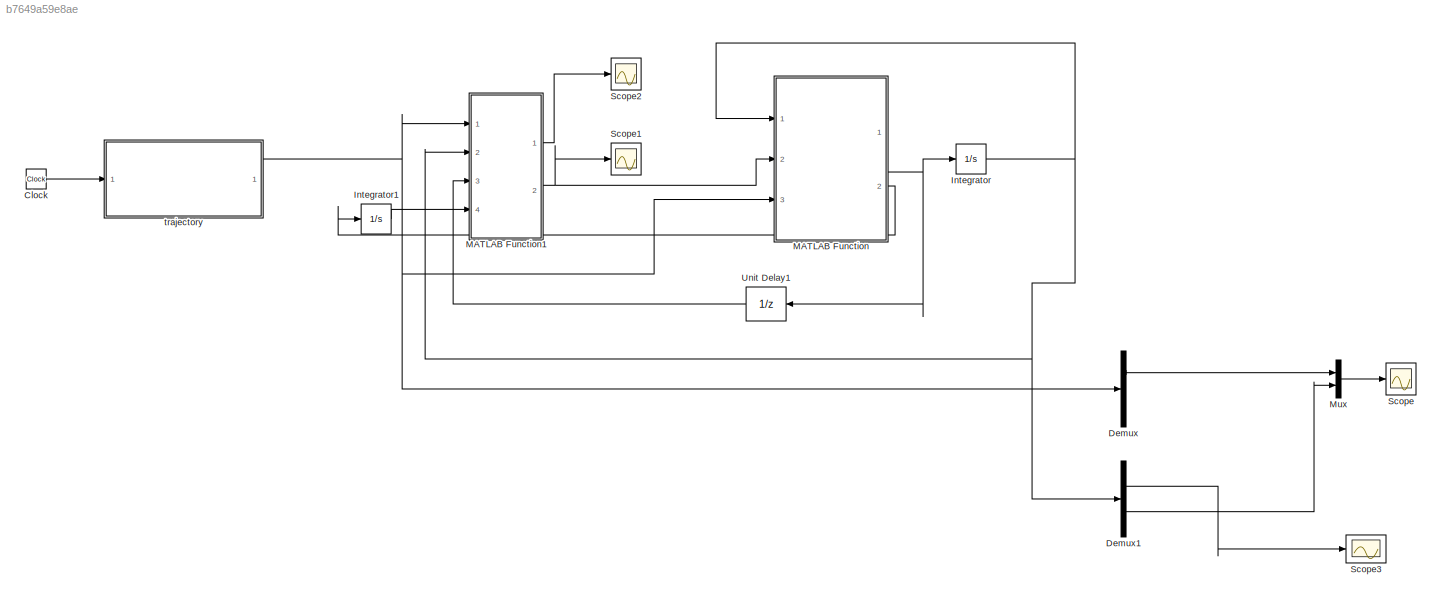
MODEL slx_b7649a59e8ae
KIND model
CONFIG AbsTol = auto
CONFIG EnableMultiTasking = off
CONFIG FixedStep = 10e-5
CONFIG MaxStep = auto
CONFIG MinStep = auto
CONFIG RelTol = auto
CONFIG SampleTimeConstraint = Unconstrained
CONFIG Solver = FixedStepAuto
CONFIG SolverName = FixedStepAuto
CONFIG StartTime = 0.0
CONFIG StopTime = 100
BLOCK [Clock] Clock
BLOCK [Demux] Demux
  DisplayOption = bar
  Outputs = 3
  Ports = [1, 3]
BLOCK [Demux] Demux1
  DisplayOption = bar
  Outputs = 2
  Ports = [1, 2]
BLOCK [Integrator] Integrator
  InitialCondition = [1;-1]
  Ports = [1, 1]
BLOCK [Integrator] Integrator1
  Ports = [1, 1]
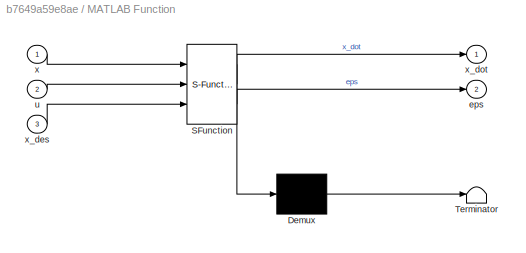
BLOCK [SubSystem] MATLAB Function
  ErrorFcn = Stateflow.Translate.translate
  PermitHierarchicalResolution = ExplicitOnly
  Ports = [3, 2]
  RequestExecContextInheritance = off
  SFBlockType = MATLAB Function
  TreatAsAtomicUnit = on
  Variant = off
BLOCK [Demux] MATLAB Function/ Demux 
  Outputs = 1
  Ports = [1, 1]
BLOCK [S-Function] MATLAB Function/ SFunction 
  EnableBusSupport = on
  FunctionName = sf_sfun
  PortCounts = [3 3]
  Ports = [3, 3]
  SFcnIsStateOwnerBlock = off
  SFunctionDeploymentMode = off
  Tag = Stateflow S-Function ver3_linear_no_r 2
BLOCK [Terminator] MATLAB Function/ Terminator 
BLOCK [Outport] MATLAB Function/eps
  IconDisplay = Port number
  Port = 2
BLOCK [Inport] MATLAB Function/u
  IconDisplay = Port number
  Port = 2
BLOCK [Inport] MATLAB Function/x
  IconDisplay = Port number
BLOCK [Inport] MATLAB Function/x_des
  IconDisplay = Port number
  Port = 3
BLOCK [Outport] MATLAB Function/x_dot
  IconDisplay = Port number
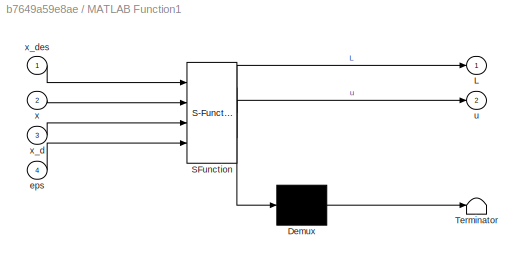
BLOCK [SubSystem] MATLAB Function1
  ErrorFcn = Stateflow.Translate.translate
  PermitHierarchicalResolution = ExplicitOnly
  Ports = [4, 2]
  RequestExecContextInheritance = off
  SFBlockType = MATLAB Function
  TreatAsAtomicUnit = on
  Variant = off
BLOCK [Demux] MATLAB Function1/ Demux 
  Outputs = 1
  Ports = [1, 1]
BLOCK [S-Function] MATLAB Function1/ SFunction 
  EnableBusSupport = on
  FunctionName = sf_sfun
  PortCounts = [4 3]
  Ports = [4, 3]
  SFcnIsStateOwnerBlock = off
  SFunctionDeploymentMode = off
  Tag = Stateflow S-Function ver3_linear_no_r 1
BLOCK [Terminator] MATLAB Function1/ Terminator 
BLOCK [Outport] MATLAB Function1/L
  IconDisplay = Port number
BLOCK [Inport] MATLAB Function1/eps
  IconDisplay = Port number
  Port = 4
BLOCK [Outport] MATLAB Function1/u
  IconDisplay = Port number
  Port = 2
BLOCK [Inport] MATLAB Function1/x
  IconDisplay = Port number
  Port = 2
BLOCK [Inport] MATLAB Function1/x_d
  IconDisplay = Port number
  Port = 3
BLOCK [Inport] MATLAB Function1/x_des
  IconDisplay = Port number
BLOCK [Mux] Mux
  DisplayOption = bar
  Inputs = 2
  Ports = [2, 1]
BLOCK [Scope] Scope
  NumInputPorts = 1
  Ports = [1]
  ScopeSpecificationString = Simulink.scopes.TimeScopeBlockCfg('CurrentConfiguration', extmgr.ConfigurationSet(extmgr.Configuration('Core','General UI',true),extmgr.Configuration('Core','Source UI',true),extmgr.Configuration('Sources','WiredSimulink',true),extmgr.Configuration('Visuals','Time Domain',true,'SerializedDisplays',{struct('MinYLimReal','-16.59773','MaxYLimReal','35.17753','YLabelReal','','MinYLimMag','0.00000','Ma...<+1415ch>
BLOCK [Scope] Scope1
  NumInputPorts = 1
  Ports = [1]
  ScopeSpecificationString = Simulink.scopes.TimeScopeBlockCfg('CurrentConfiguration', extmgr.ConfigurationSet(extmgr.Configuration('Core','General UI',true),extmgr.Configuration('Core','Source UI',true),extmgr.Configuration('Sources','WiredSimulink',true,'DataLoggingVariableName','ScopeData1'),extmgr.Configuration('Visuals','Time Domain',true,'SerializedDisplays',{struct('MinYLimReal','-9172.77893','MaxYLimReal','9471.61634'...<+1470ch>
BLOCK [Scope] Scope2
  NumInputPorts = 1
  Ports = [1]
  ScopeSpecificationString = Simulink.scopes.TimeScopeBlockCfg('CurrentConfiguration', extmgr.ConfigurationSet(extmgr.Configuration('Core','General UI',true),extmgr.Configuration('Core','Source UI',true),extmgr.Configuration('Sources','WiredSimulink',true,'DataLoggingVariableName','ScopeData1'),extmgr.Configuration('Visuals','Time Domain',true,'SerializedDisplays',{struct('MinYLimReal','111.7397','MaxYLimReal','1198.7597','YL...<+1458ch>
BLOCK [Scope] Scope3
  NumInputPorts = 1
  Ports = [1]
  ScopeSpecificationString = Simulink.scopes.TimeScopeBlockCfg('CurrentConfiguration', extmgr.ConfigurationSet(extmgr.Configuration('Core','General UI',true),extmgr.Configuration('Core','Source UI',true),extmgr.Configuration('Sources','WiredSimulink',true,'DataLoggingVariableName','ScopeData2'),extmgr.Configuration('Visuals','Time Domain',true,'SerializedDisplays',{struct('MinYLimReal','-4.53426','MaxYLimReal','50.80837','YLa...<+1442ch>
BLOCK [UnitDelay] Unit Delay1
  InitialCondition = [0;0]
  SampleTime = -1
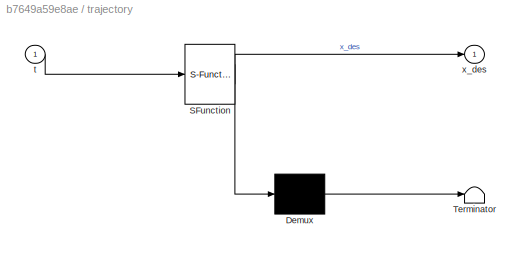
BLOCK [SubSystem] trajectory
  ErrorFcn = Stateflow.Translate.translate
  PermitHierarchicalResolution = ExplicitOnly
  Ports = [1, 1]
  RequestExecContextInheritance = off
  SFBlockType = MATLAB Function
  TreatAsAtomicUnit = on
  Variant = off
BLOCK [Demux] trajectory/ Demux 
  Outputs = 1
  Ports = [1, 1]
BLOCK [S-Function] trajectory/ SFunction 
  EnableBusSupport = on
  FunctionName = sf_sfun
  PortCounts = [1 2]
  Ports = [1, 2]
  SFcnIsStateOwnerBlock = off
  SFunctionDeploymentMode = off
  Tag = Stateflow S-Function ver3_linear_no_r 3
BLOCK [Terminator] trajectory/ Terminator 
BLOCK [Inport] trajectory/t
  IconDisplay = Port number
BLOCK [Outport] trajectory/x_des
  IconDisplay = Port number
LINE Clock:1 -> trajectory:1
LINE Demux1:1 -> Scope3:1
LINE Demux1:2 -> Mux:2
LINE Demux:1 -> Mux:1
LINE Integrator1:1 -> MATLAB Function1:4
NET Integrator:1 -> Demux1:1, MATLAB Function1:2, MATLAB Function:1
LINE MATLAB Function1:1 -> Scope2:1
NET MATLAB Function1:2 -> MATLAB Function:2, Scope1:1
NET MATLAB Function:1 -> Integrator:1, Unit Delay1:1
LINE MATLAB Function:2 -> Integrator1:1
LINE Mux:1 -> Scope:1
LINE Unit Delay1:1 -> MATLAB Function1:3
NET trajectory:1 -> Demux:1, MATLAB Function1:1, MATLAB Function:3
note: NET lines group one-source signal fan-out (src -> all destinations, sorted); 1:1 wires keep LINE
CHART MATLAB Function1 states=1 transitions=1
  STATE_LABEL 'eML_blk_kernel()'
  STATE_LABEL 'SCRIPT:\nfunction [L,u]= fcn(x_des,x,x_d,eps)\n\nlam = 1;\nKv = 1000;\nKa = 1000;\nKi = 100;\n\ne = x_des(1,1) - x(2,1);\ne_d = x_des(2,1) - x_d(2,1);\n\nr = e_d + lam*(e);\n\n% system constant\nA = 20;\nB = 1;\nC = 5.3;\nD = 20;\n\n% % ver1\n% % define f(x) function\n% f_t = e*(x_des(2) - D*x_des(1) - (C+B)*x(1)) + x(1)*B*x_des(1);\n% \n% u = 1/(x(1))*(e^2*Kv + Ka + f_t);\n\n% ver2\n% define f(x) function\nf_t = e*(x_des(2...<+140ch>'
CHART MATLAB Function states=1 transitions=1
  STATE_LABEL 'eML_blk_kernel()'
  STATE_LABEL 'SCRIPT:\nfunction [x_dot,eps]= fcn(x,u,x_des)\n\nq = zeros(2,1);\n\nq(1,1) = 20*x(1,1) + 1*x(2,1) + u(1,1);\nq(2,1) = 5.3*x(1,1) + 20*x(2,1);\n\nx_dot = q;\n\n\neps = x_des(1) - x(2,1);\n\nend'
CHART trajectory states=1 transitions=1
  STATE_LABEL 'eML_blk_kernel()'
  STATE_LABEL 'SCRIPT:\nfunction x_des = fcn(t)\n\nA = 10;\nB = 1;\nf = 0.11;\nw = 2*pi*f;\n\ny = A*sin(w*t) + 20;\ny_d = A*w*cos(w*t);\ny_dd = -A*w*w*sin(w*t);\n\n% y = 0;\n% \n% if t > 0 && t < 25\n%     \n%     y = 25 + t^2;\n% end\n% \n% if t >= 25 && t < 50\n%     \n%     y = 35 - t^2;\n%     \n% end\n% \n% if t >= 50 && t < 75\n%     \n%     y = 10 + t^2;\n%     \n% end\n% \n% if t >= 75 && t < 100\n%     \n%     y = 20 - t^2;\n%     \n% en...<+60ch>'
